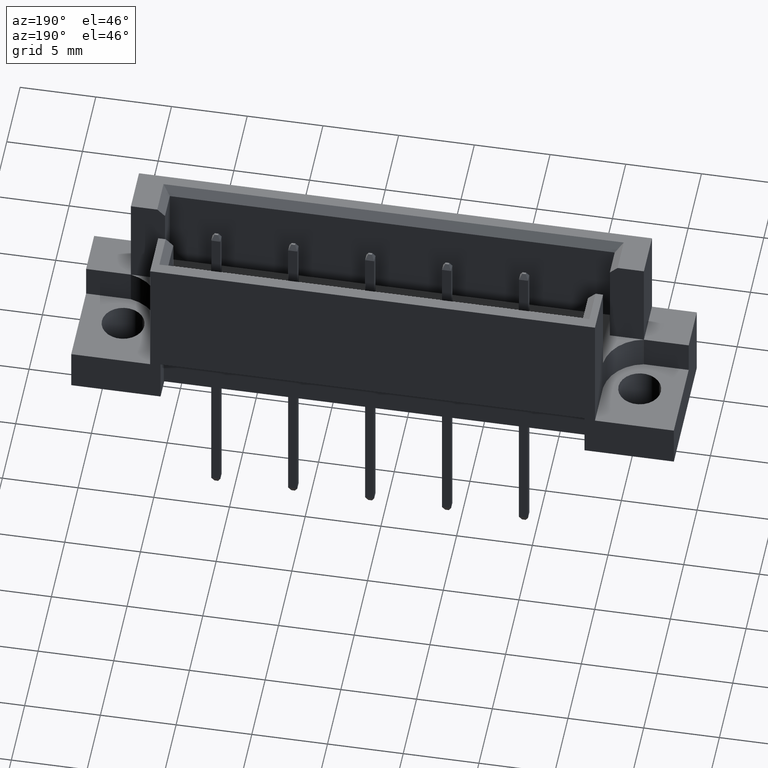
[diagram: clean part render]
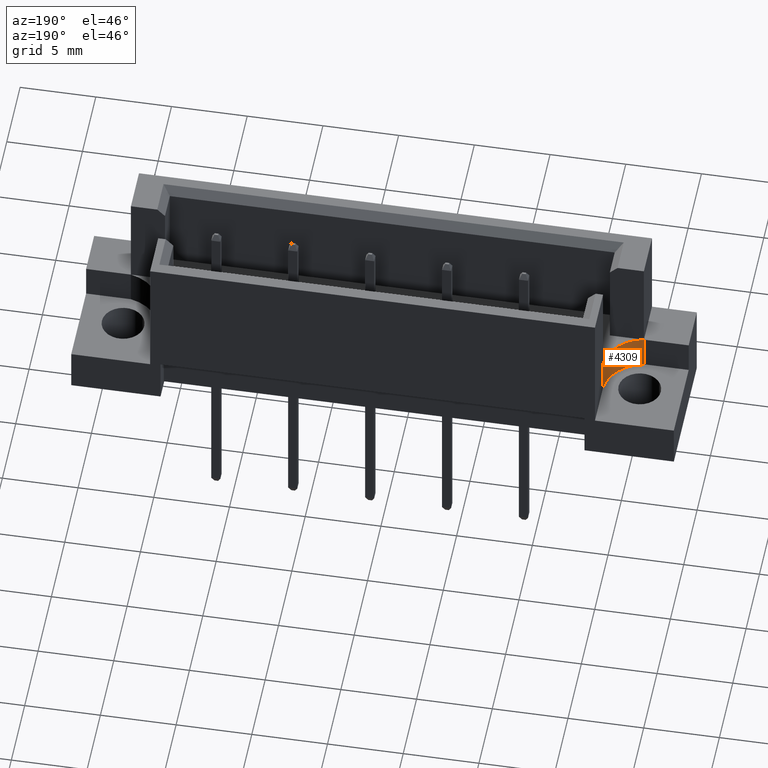
[diagram: same view with one face highlighted and labeled with its STEP entity id]
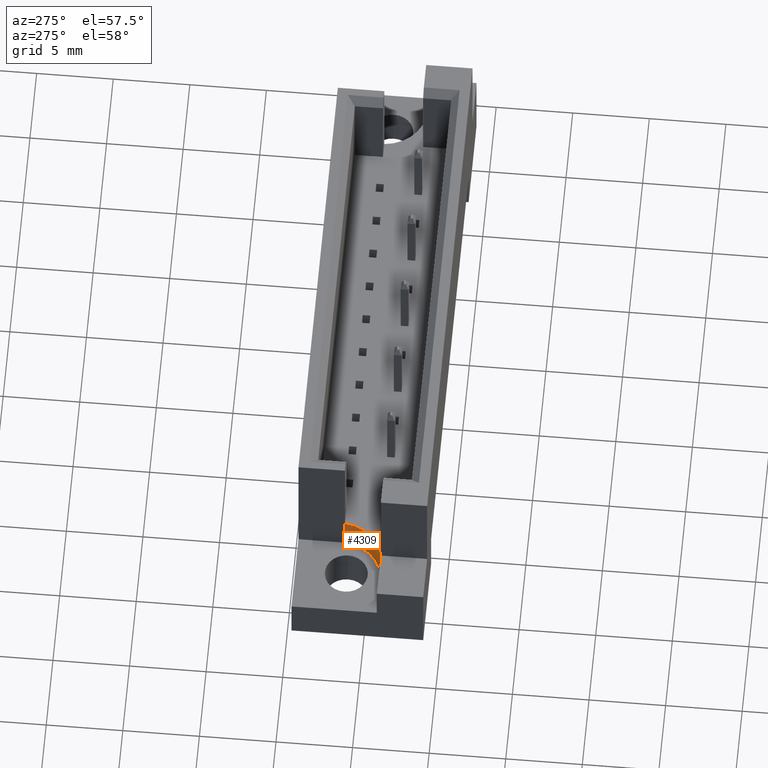
[diagram: same view with one face highlighted and labeled with its STEP entity id]
A machine part, auxiliary view. The second image highlights one B-rep face of the part: STEP entity #4309.
A second angle (auxiliary view) of the same face is appended — the face is thin or edge-on in the first view.
In plain terms, the highlighted cylindrical surface (partial cylindrical patch) has radius 2.8 mm, axis along (-0, -0, -1).
Its self-contained STEP definition (entity closure, byte-faithful):
#7 = DIRECTION ( 'NONE',  ( -0.0000000000000000000, -0.0000000000000000000, -1.000000000000000000 ) ) ;
#159 = AXIS2_PLACEMENT_3D ( 'NONE', #1510, #3882, #433 ) ;
#277 = VECTOR ( 'NONE', #7, 1000.000000000000000 ) ;
#369 = CARTESIAN_POINT ( 'NONE',  ( -17.48233981823222294, 1.476974248434024251, 19.22686042877410628 ) ) ;
#408 = CARTESIAN_POINT ( 'NONE',  ( -14.68999999999999773, 1.270000000000030216, 19.22686042877410628 ) ) ;
#415 = LINE ( 'NONE', #1259, #1105 ) ;
#433 = DIRECTION ( 'NONE',  ( 1.000000000000000000, 0.0000000000000000000, 0.0000000000000000000 ) ) ;
#513 = CARTESIAN_POINT ( 'NONE',  ( -16.94000000000001194, -1.270000000000031326, 5.199999999999998401 ) ) ;
#789 = EDGE_CURVE ( 'NONE', #1353, #2922, #3594, .T. ) ;
#878 = CIRCLE ( 'NONE', #3686, 2.800000000000000266 ) ;
#1105 = VECTOR ( 'NONE', #4606, 1000.000000000000000 ) ;
#1121 = EDGE_CURVE ( 'NONE', #1145, #2922, #415, .T. ) ;
#1145 = VERTEX_POINT ( 'NONE', #513 ) ;
#1259 = CARTESIAN_POINT ( 'NONE',  ( -16.94000000000001194, -1.270000000000031326, 19.22686042877410628 ) ) ;
#1353 = VERTEX_POINT ( 'NONE', #2187 ) ;
#1400 = EDGE_CURVE ( 'NONE', #3234, #1353, #2334, .T. ) ;
#1496 = AXIS2_PLACEMENT_3D ( 'NONE', #369, #1640, #2380 ) ;
#1510 = CARTESIAN_POINT ( 'NONE',  ( -17.48233981823222294, 1.476974248434024251, 2.899999999999999911 ) ) ;
#1640 = DIRECTION ( 'NONE',  ( -0.0000000000000000000, -0.0000000000000000000, -1.000000000000000000 ) ) ;
#2187 = CARTESIAN_POINT ( 'NONE',  ( -14.68999999999999773, 1.270000000000030216, 2.899999999999999911 ) ) ;
#2281 = ORIENTED_EDGE ( 'NONE', *, *, #789, .T. ) ;
#2334 = LINE ( 'NONE', #408, #277 ) ;
#2355 = CARTESIAN_POINT ( 'NONE',  ( -16.94000000000001194, -1.270000000000031326, 2.899999999999999911 ) ) ;
#2370 = DIRECTION ( 'NONE',  ( 1.000000000000000000, 0.0000000000000000000, 0.0000000000000000000 ) ) ;
#2380 = DIRECTION ( 'NONE',  ( -1.000000000000000000, 0.0000000000000000000, 0.0000000000000000000 ) ) ;
#2458 = ORIENTED_EDGE ( 'NONE', *, *, #3813, .T. ) ;
#2737 = EDGE_LOOP ( 'NONE', ( #2458, #3379, #2281, #3801 ) ) ;
#2922 = VERTEX_POINT ( 'NONE', #2355 ) ;
#3061 = CARTESIAN_POINT ( 'NONE',  ( -17.48233981823222294, 1.476974248434024251, 5.200000000000000178 ) ) ;
#3234 = VERTEX_POINT ( 'NONE', #4813 ) ;
#3379 = ORIENTED_EDGE ( 'NONE', *, *, #1400, .T. ) ;
#3594 = CIRCLE ( 'NONE', #159, 2.800000000000000266 ) ;
#3686 = AXIS2_PLACEMENT_3D ( 'NONE', #3061, #4210, #2370 ) ;
#3801 = ORIENTED_EDGE ( 'NONE', *, *, #1121, .F. ) ;
#3813 = EDGE_CURVE ( 'NONE', #1145, #3234, #878, .T. ) ;
#3882 = DIRECTION ( 'NONE',  ( -0.0000000000000000000, 0.0000000000000000000, -1.000000000000000000 ) ) ;
#4210 = DIRECTION ( 'NONE',  ( 0.0000000000000000000, 0.0000000000000000000, 1.000000000000000000 ) ) ;
#4279 = CYLINDRICAL_SURFACE ( 'NONE', #1496, 2.800000000000000266 ) ;
#4309 = ADVANCED_FACE ( 'NONE', ( #4652 ), #4279, .F. ) ;
#4606 = DIRECTION ( 'NONE',  ( -0.0000000000000000000, -0.0000000000000000000, -1.000000000000000000 ) ) ;
#4652 = FACE_OUTER_BOUND ( 'NONE', #2737, .T. ) ;
#4813 = CARTESIAN_POINT ( 'NONE',  ( -14.68999999999999773, 1.270000000000030216, 5.199999999999999289 ) ) ;